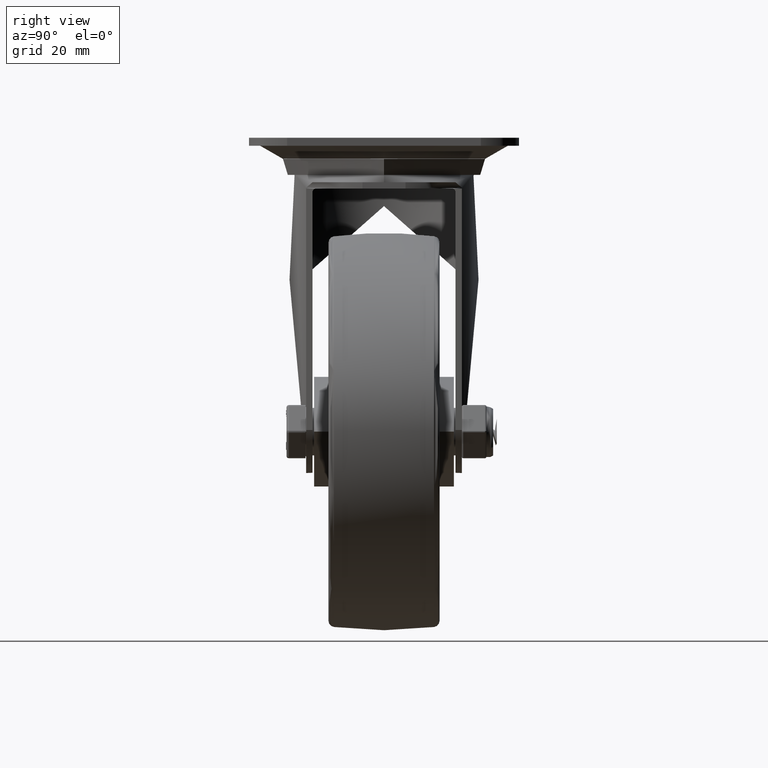
[diagram: clean part render]
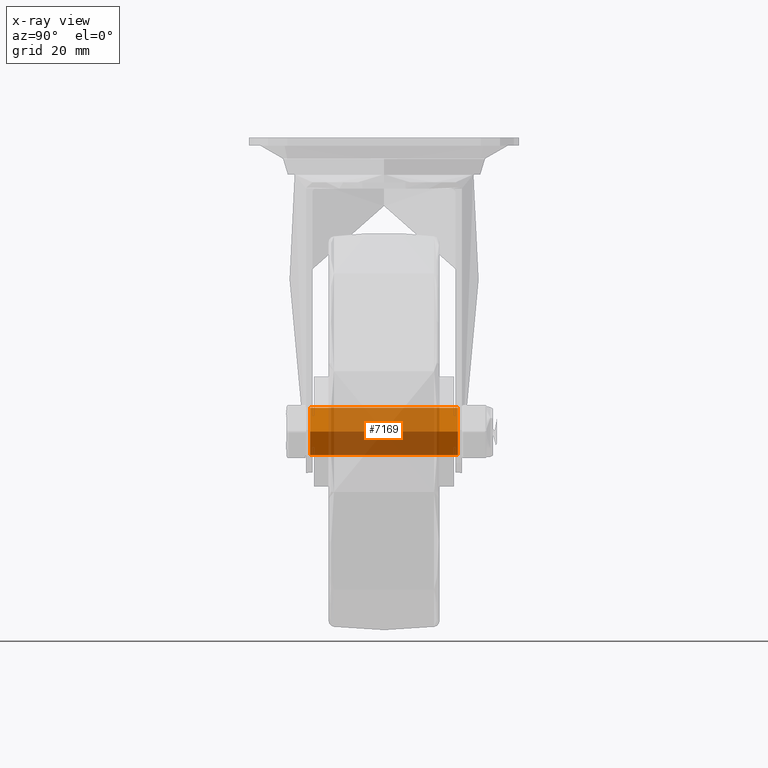
[diagram: x-ray — body ghosted, one internal face saturated and labeled with its STEP entity id]
A machine part, right view, then the same camera in x-ray: the body is ghosted and one INTERNAL B-rep face — a face not visible from any outside direction — is saturated and labeled: STEP entity #7169.
In plain terms, the highlighted cylindrical surface (bore or boss wall) has radius 7.475 mm, axis along (0, -1, -0).
Its self-contained STEP definition (entity closure, byte-faithful):
#933=FACE_OUTER_BOUND('',#1392,.T.);
#1392=EDGE_LOOP('',(#5824,#5825,#5826,#5827));
#1930=LINE('',#12461,#2473);
#2473=VECTOR('',#9412,7.475);
#2898=CIRCLE('',#7943,7.475);
#2899=CIRCLE('',#7944,7.475);
#3356=VERTEX_POINT('',#12458);
#3357=VERTEX_POINT('',#12460);
#4219=EDGE_CURVE('',#3356,#3356,#2898,.T.);
#4220=EDGE_CURVE('',#3356,#3357,#1930,.T.);
#4221=EDGE_CURVE('',#3357,#3357,#2899,.T.);
#5824=ORIENTED_EDGE('',*,*,#4219,.T.);
#5825=ORIENTED_EDGE('',*,*,#4220,.T.);
#5826=ORIENTED_EDGE('',*,*,#4221,.T.);
#5827=ORIENTED_EDGE('',*,*,#4220,.F.);
#6875=CYLINDRICAL_SURFACE('',#7942,7.475);
#7169=ADVANCED_FACE('',(#933),#6875,.T.);
#7942=AXIS2_PLACEMENT_3D('',#12457,#9408,#9409);
#7943=AXIS2_PLACEMENT_3D('',#12459,#9410,#9411);
#7944=AXIS2_PLACEMENT_3D('',#12462,#9413,#9414);
#9408=DIRECTION('center_axis',(0.,-1.,-3.49148336110938E-15));
#9409=DIRECTION('ref_axis',(1.,0.,0.));
#9410=DIRECTION('center_axis',(0.,1.,3.49148336110938E-15));
#9411=DIRECTION('ref_axis',(1.,0.,0.));
#9412=DIRECTION('',(0.,1.,3.49148336110938E-15));
#9413=DIRECTION('center_axis',(0.,-1.,-3.49148336110938E-15));
#9414=DIRECTION('ref_axis',(1.,0.,0.));
#12457=CARTESIAN_POINT('Origin',(0.,0.,0.));
#12458=CARTESIAN_POINT('',(-7.475,-23.25,-8.02615646634305E-14));
#12459=CARTESIAN_POINT('Origin',(0.,-23.25,-8.11769881457931E-14));
#12460=CARTESIAN_POINT('',(-7.475,23.25,8.20924116281558E-14));
#12461=CARTESIAN_POINT('',(-7.475,3.19618585703799E-30,-9.15423482362646E-16));
#12462=CARTESIAN_POINT('Origin',(0.,23.25,8.11769881457931E-14));